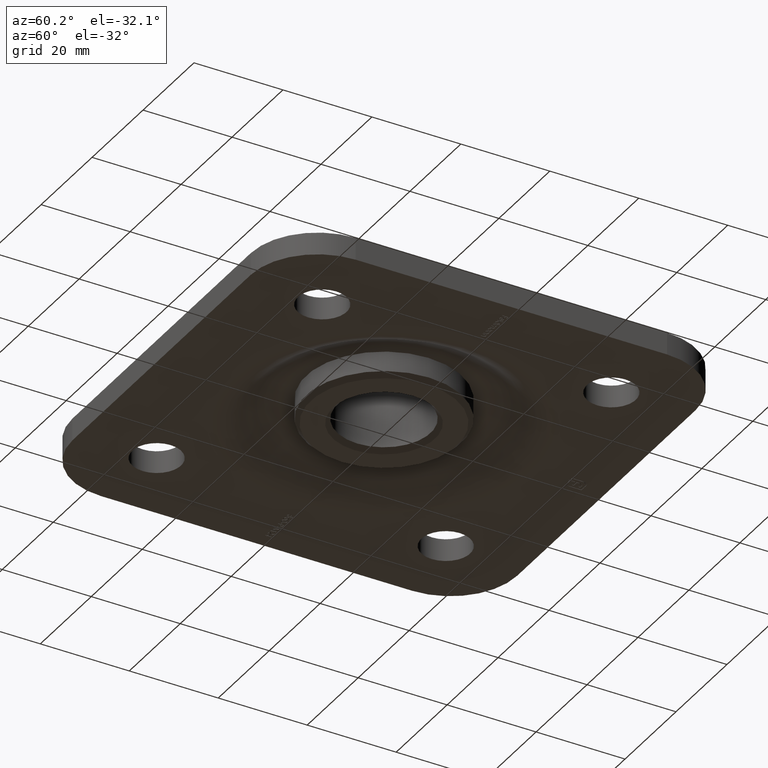
[diagram: clean part render]
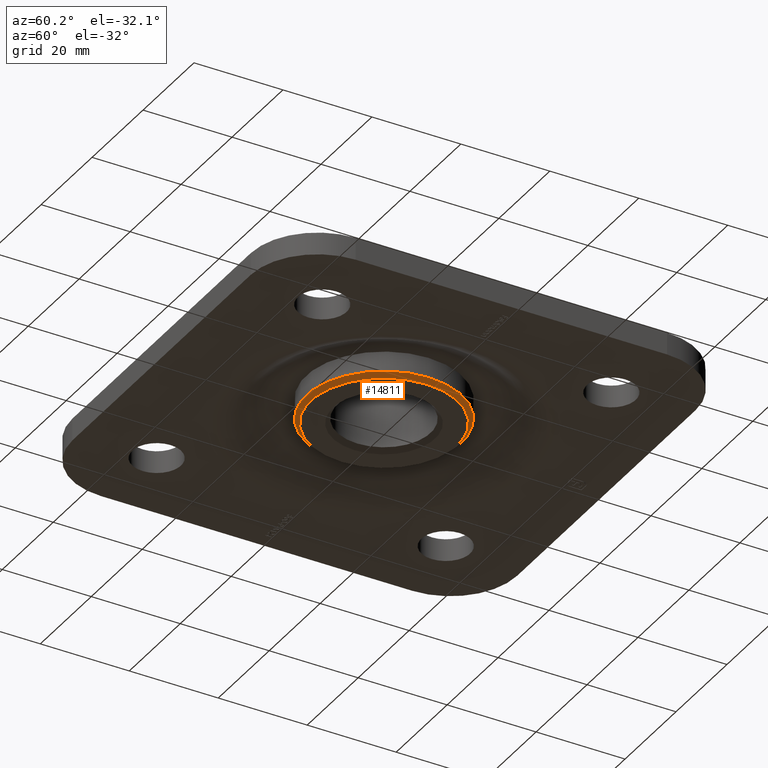
[diagram: same view with one face highlighted and labeled with its STEP entity id]
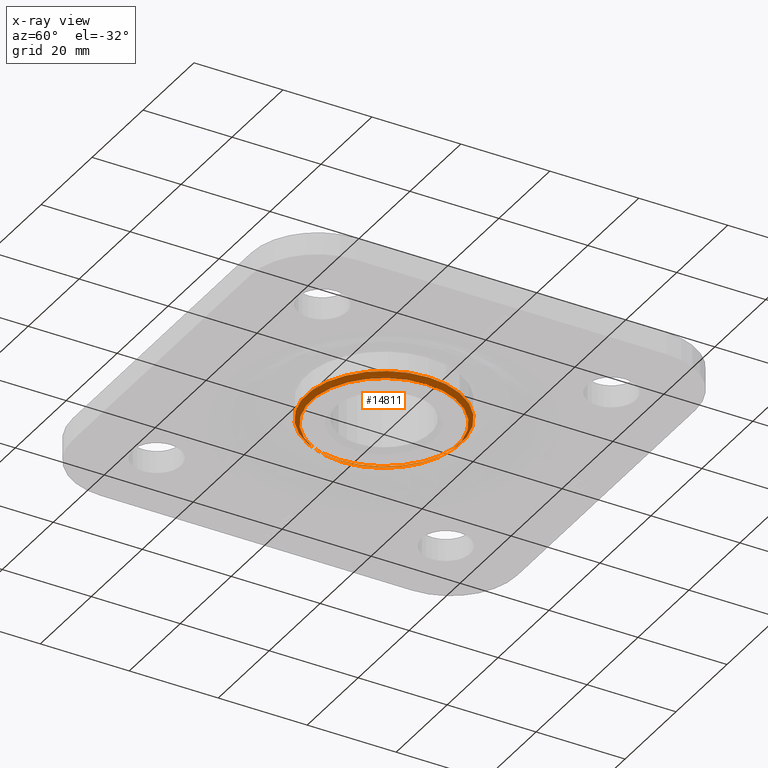
[diagram: x-ray of the same camera — body ghosted, the highlighted face saturated]
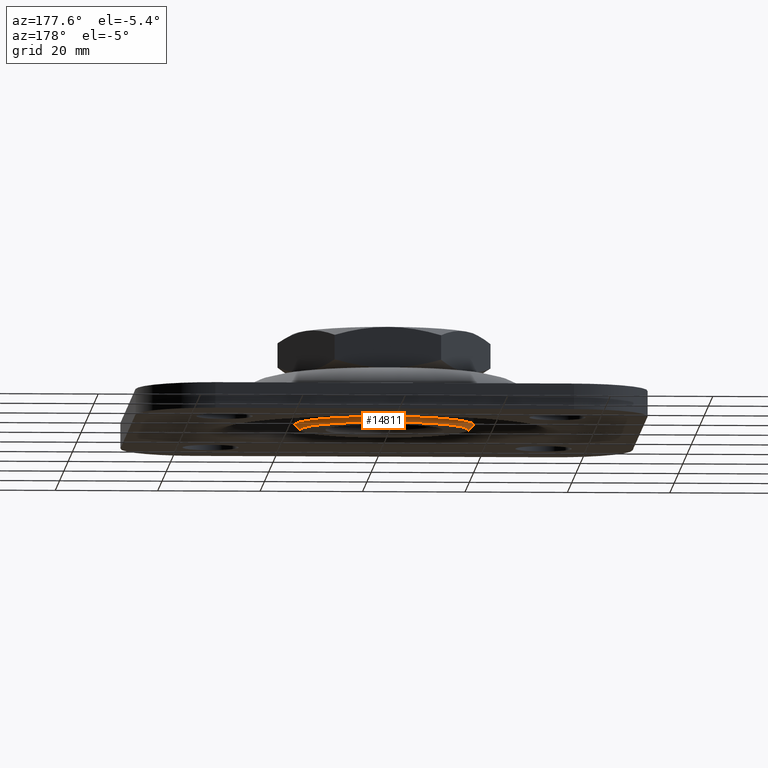
[diagram: same view with one face highlighted and labeled with its STEP entity id]
A machine part, auxiliary view. The second image highlights one B-rep face of the part: STEP entity #14811.
The next image is the same camera in x-ray: the body ghosted, the highlighted face saturated — about 0% of this face is hidden behind the body in this view.
A second angle (auxiliary view) of the same face is appended — the face is thin or edge-on in the first view.
In plain terms, the highlighted conical surface has half-angle 45 deg.
Its self-contained STEP definition (entity closure, byte-faithful):
#79 = DIRECTION ( 'NONE',  ( -1.000000000000000000, 0.000000000000000000, 0.000000000000000000 ) ) ;
#567 = CIRCLE ( 'NONE', #3182, 16.50000000000001421 ) ;
#856 = EDGE_LOOP ( 'NONE', ( #7267 ) ) ;
#1484 = DIRECTION ( 'NONE',  ( -1.000000000000000000, 0.000000000000000000, 0.000000000000000000 ) ) ;
#3119 = EDGE_LOOP ( 'NONE', ( #10100 ) ) ;
#3182 = AXIS2_PLACEMENT_3D ( 'NONE', #5927, #9592, #79 ) ;
#4930 = CIRCLE ( 'NONE', #12744, 17.50000000000000355 ) ;
#5014 = EDGE_CURVE ( 'NONE', #10826, #10826, #567, .T. ) ;
#5460 = VERTEX_POINT ( 'NONE', #11382 ) ;
#5927 = CARTESIAN_POINT ( 'NONE',  ( 0.000000000000000000, 0.000000000000000000, 0.5000000000000000000 ) ) ;
#7267 = ORIENTED_EDGE ( 'NONE', *, *, #5014, .F. ) ;
#7376 = CARTESIAN_POINT ( 'NONE',  ( 0.000000000000000000, 0.000000000000000000, 1.499999999999994449 ) ) ;
#7938 = DIRECTION ( 'NONE',  ( 0.000000000000000000, 0.000000000000000000, 1.000000000000000000 ) ) ;
#8566 = DIRECTION ( 'NONE',  ( 0.000000000000000000, 0.000000000000000000, 1.000000000000000000 ) ) ;
#8999 = CONICAL_SURFACE ( 'NONE', #12946, 16.50000000000001421, 0.7853981633974466137 ) ;
#9176 = DIRECTION ( 'NONE',  ( 1.000000000000000000, 0.000000000000000000, 0.000000000000000000 ) ) ;
#9592 = DIRECTION ( 'NONE',  ( 0.000000000000000000, 0.000000000000000000, -1.000000000000000000 ) ) ;
#10100 = ORIENTED_EDGE ( 'NONE', *, *, #15110, .F. ) ;
#10826 = VERTEX_POINT ( 'NONE', #15051 ) ;
#11382 = CARTESIAN_POINT ( 'NONE',  ( -17.50000000000000355, 0.000000000000000000, 1.499999999999994449 ) ) ;
#12744 = AXIS2_PLACEMENT_3D ( 'NONE', #7376, #8566, #1484 ) ;
#12946 = AXIS2_PLACEMENT_3D ( 'NONE', #14139, #7938, #9176 ) ;
#13621 = FACE_OUTER_BOUND ( 'NONE', #3119, .T. ) ;
#14139 = CARTESIAN_POINT ( 'NONE',  ( 0.000000000000000000, 0.000000000000000000, 0.5000000000000004441 ) ) ;
#14360 = FACE_BOUND ( 'NONE', #856, .T. ) ;
#14811 = ADVANCED_FACE ( 'NONE', ( #13621, #14360 ), #8999, .T. ) ;
#15051 = CARTESIAN_POINT ( 'NONE',  ( -16.50000000000001421, 0.000000000000000000, 0.5000000000000000000 ) ) ;
#15110 = EDGE_CURVE ( 'NONE', #5460, #5460, #4930, .T. ) ;